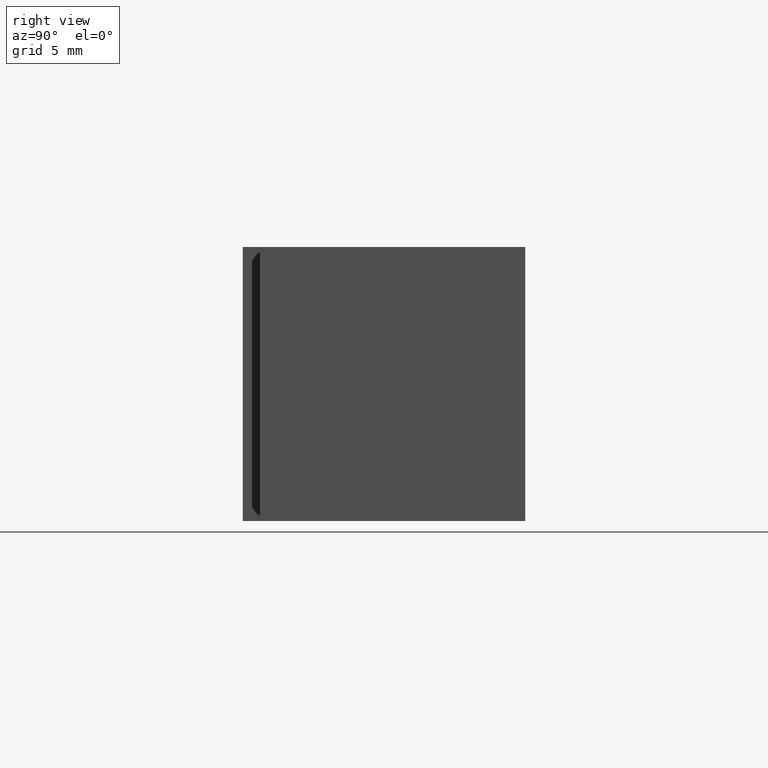
[diagram: clean part render]
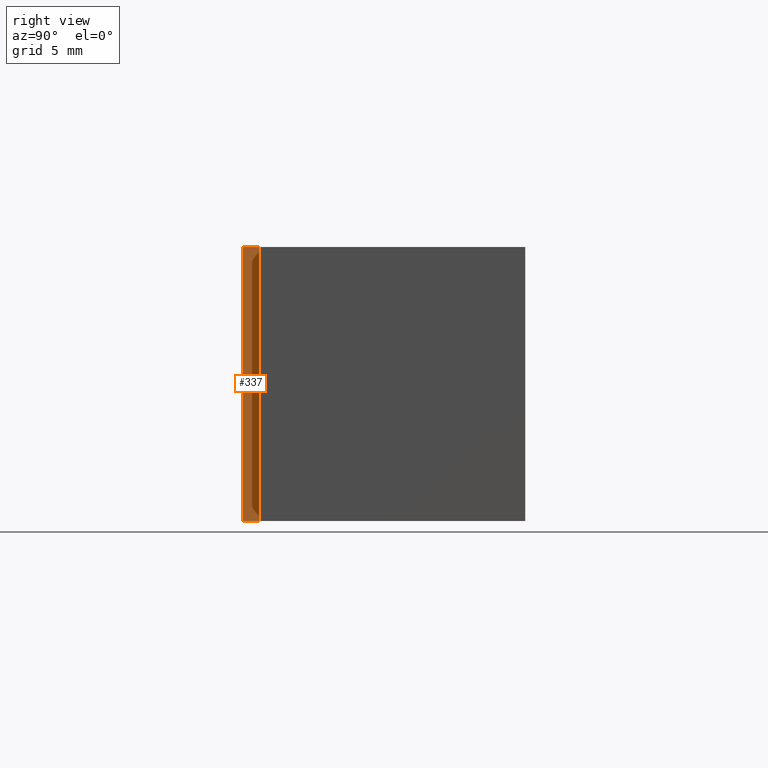
[diagram: same view with one face highlighted and labeled with its STEP entity id]
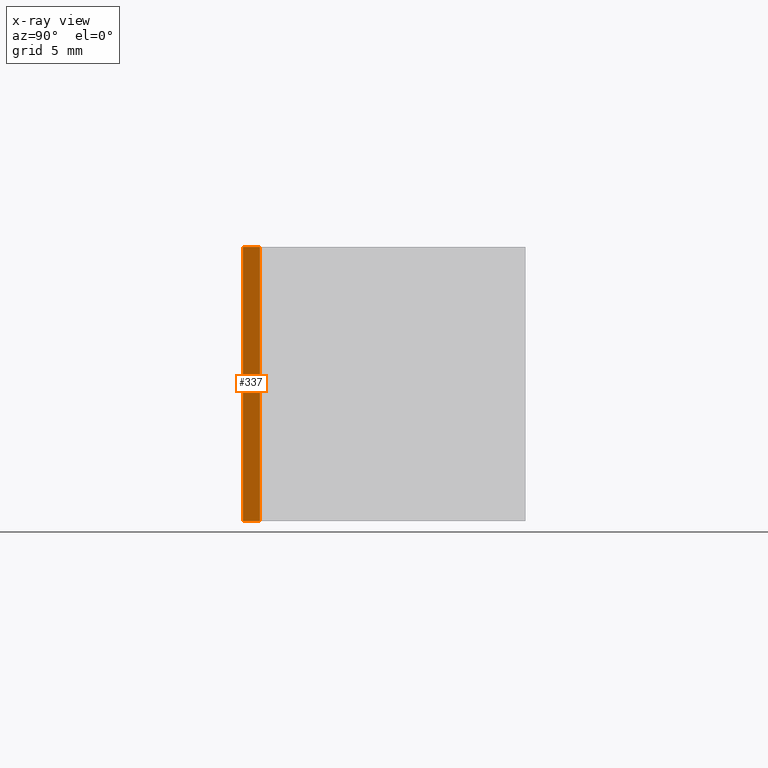
[diagram: x-ray of the same camera — body ghosted, the highlighted face saturated]
A machine part, right view. The second image highlights one B-rep face of the part: STEP entity #337.
The next image is the same camera in x-ray: the body ghosted, the highlighted face saturated — about 0% of this face is hidden behind the body in this view.
In plain terms, the highlighted planar face has unit normal (1, 0, 0).
Its self-contained STEP definition (entity closure, byte-faithful):
#20=FACE_OUTER_BOUND('',#38,.T.);
#38=EDGE_LOOP('',(#241,#242,#243,#244));
#63=LINE('',#501,#105);
#74=LINE('',#530,#116);
#75=LINE('',#531,#117);
#76=LINE('',#532,#118);
#105=VECTOR('',#407,10.);
#116=VECTOR('',#426,10.);
#117=VECTOR('',#427,10.);
#118=VECTOR('',#428,10.);
#147=VERTEX_POINT('',#498);
#148=VERTEX_POINT('',#500);
#161=VERTEX_POINT('',#528);
#162=VERTEX_POINT('',#529);
#179=EDGE_CURVE('',#148,#147,#63,.T.);
#193=EDGE_CURVE('',#161,#162,#74,.T.);
#194=EDGE_CURVE('',#162,#148,#75,.T.);
#195=EDGE_CURVE('',#161,#147,#76,.T.);
#241=ORIENTED_EDGE('',*,*,#193,.T.);
#242=ORIENTED_EDGE('',*,*,#194,.T.);
#243=ORIENTED_EDGE('',*,*,#179,.T.);
#244=ORIENTED_EDGE('',*,*,#195,.F.);
#322=PLANE('',#381);
#337=ADVANCED_FACE('',(#20),#322,.T.);
#381=AXIS2_PLACEMENT_3D('',#527,#424,#425);
#407=DIRECTION('',(-1.11022302462515E-15,1.,0.));
#424=DIRECTION('center_axis',(1.,1.11022302462515E-15,0.));
#425=DIRECTION('ref_axis',(0.,0.,-1.));
#426=DIRECTION('',(1.11022302462515E-15,-1.,0.));
#427=DIRECTION('',(0.,0.,-1.));
#428=DIRECTION('',(0.,0.,-1.));
#498=CARTESIAN_POINT('',(6.5,2.97296713609617E-15,-8.));
#500=CARTESIAN_POINT('',(6.5,-1.,-8.));
#501=CARTESIAN_POINT('',(6.5,2.97296713609617E-15,-8.));
#527=CARTESIAN_POINT('Origin',(6.5,2.97296713609617E-15,0.));
#528=CARTESIAN_POINT('',(6.5,2.97296713609617E-15,8.));
#529=CARTESIAN_POINT('',(6.5,-1.,8.));
#530=CARTESIAN_POINT('',(6.5,2.97296713609617E-15,8.));
#531=CARTESIAN_POINT('',(6.5,-1.,0.));
#532=CARTESIAN_POINT('',(6.5,2.97296713609617E-15,0.));